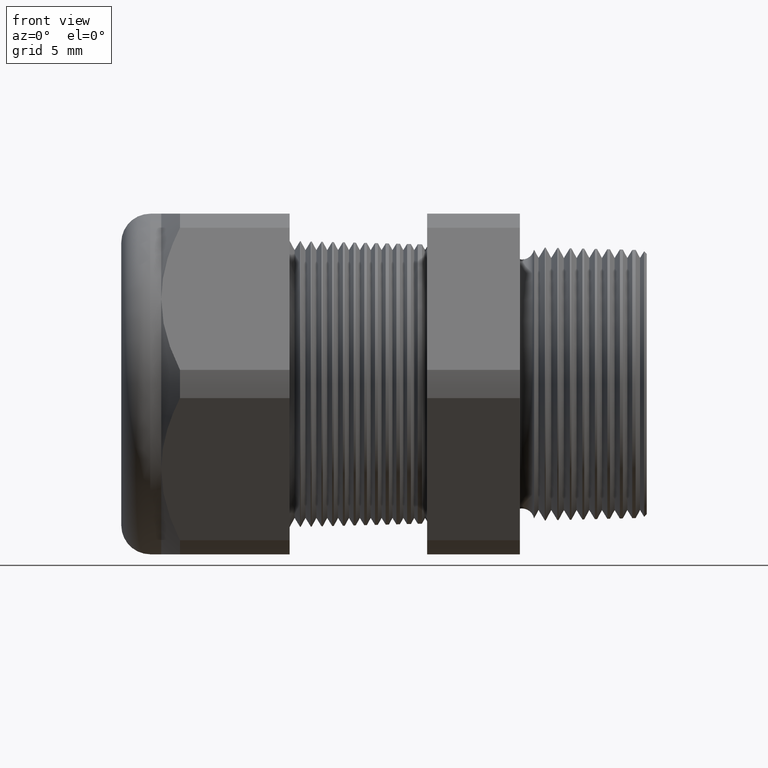
[diagram: clean part render]
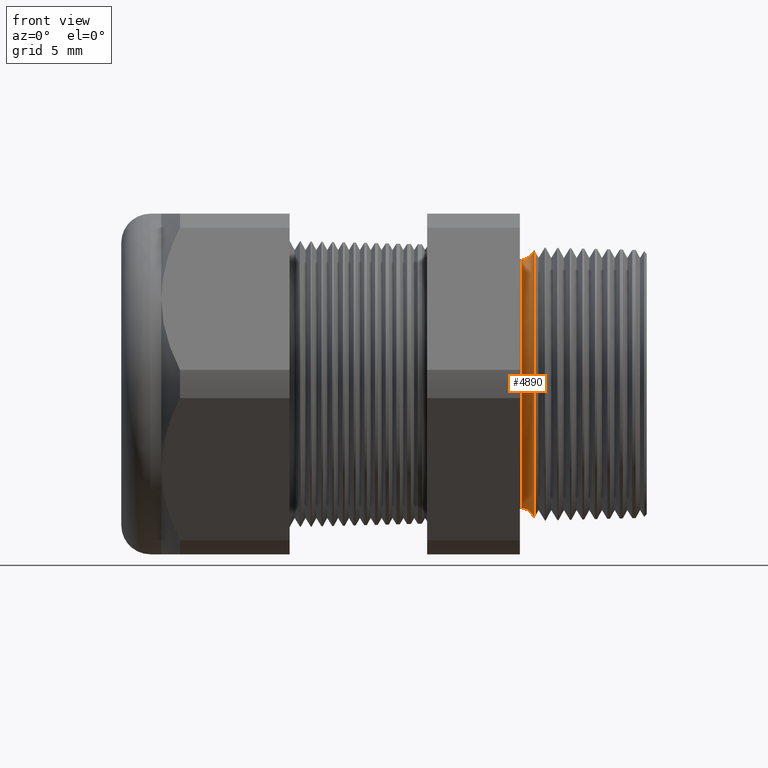
[diagram: same view with one face highlighted and labeled with its STEP entity id]
A machine part, front view. The second image highlights one B-rep face of the part: STEP entity #4890.
In plain terms, the highlighted toroidal blend (fillet) surface has major radius 9.6104 mm and minor (blend) radius 0.889 mm.
Its self-contained STEP definition (entity closure, byte-faithful):
#100 = EDGE_CURVE ( 'NONE', #101, #4891, #1248, .T. ) ;
#101 = VERTEX_POINT ( 'NONE', #1243 ) ;
#104 = EDGE_LOOP ( 'NONE', ( #4892, #4894, #106, #107 ) ) ;
#105 = EDGE_CURVE ( 'NONE', #4891, #4867, #1303, .T. ) ;
#106 = ORIENTED_EDGE ( 'NONE', *, *, #4869, .F. ) ;
#107 = ORIENTED_EDGE ( 'NONE', *, *, #109, .F. ) ;
#109 = EDGE_CURVE ( 'NONE', #101, #4863, #1299, .T. ) ;
#1242 = CARTESIAN_POINT ( 'NONE',  ( -0.3049999999999999400, 0.0000000000000000000, 0.0000000000000000000 ) ) ;
#1243 = CARTESIAN_POINT ( 'NONE',  ( -0.2708463023710462300, 0.0000000000000000000, 0.3707104400814432700 ) ) ;
#1244 = DIRECTION ( 'NONE',  ( 0.0000000000000000000, 1.224646799147352700E-016, 1.000000000000000000 ) ) ;
#1245 = DIRECTION ( 'NONE',  ( 0.0000000000000000000, 1.000000000000000000, -1.224646799147353200E-016 ) ) ;
#1246 = CARTESIAN_POINT ( 'NONE',  ( -0.3049999999999999400, 4.633580970323678400E-017, 0.3783605994438362700 ) ) ;
#1247 = AXIS2_PLACEMENT_3D ( 'NONE', #1246, #1245, #1244 ) ;
#1248 = CIRCLE ( 'NONE', #1247, 0.03499999999999996900 ) ;
#1295 = DIRECTION ( 'NONE',  ( 0.0000000000000000000, 0.0000000000000000000, 1.000000000000000000 ) ) ;
#1296 = DIRECTION ( 'NONE',  ( 1.000000000000000000, 0.0000000000000000000, 0.0000000000000000000 ) ) ;
#1297 = CARTESIAN_POINT ( 'NONE',  ( -0.2708463023710462300, 0.0000000000000000000, 0.0000000000000000000 ) ) ;
#1298 = AXIS2_PLACEMENT_3D ( 'NONE', #1297, #1296, #1295 ) ;
#1299 = CIRCLE ( 'NONE', #1298, 0.3707104400814433300 ) ;
#1300 = DIRECTION ( 'NONE',  ( 0.0000000000000000000, 0.0000000000000000000, -1.000000000000000000 ) ) ;
#1301 = DIRECTION ( 'NONE',  ( 1.000000000000000000, 0.0000000000000000000, 0.0000000000000000000 ) ) ;
#1302 = AXIS2_PLACEMENT_3D ( 'NONE', #1242, #1301, #1300 ) ;
#1303 = CIRCLE ( 'NONE', #1302, 0.3433605994438362900 ) ;
#3980 = CARTESIAN_POINT ( 'NONE',  ( -0.3049999999999999400, 0.0000000000000000000, -0.3433605994438362900 ) ) ;
#3987 = CARTESIAN_POINT ( 'NONE',  ( -0.2708463023710462300, 4.539893538562461000E-017, -0.3707104400814432700 ) ) ;
#4035 = DIRECTION ( 'NONE',  ( 0.0000000000000000000, 0.0000000000000000000, -1.000000000000000000 ) ) ;
#4036 = DIRECTION ( 'NONE',  ( 0.0000000000000000000, -1.000000000000000000, 0.0000000000000000000 ) ) ;
#4037 = CARTESIAN_POINT ( 'NONE',  ( -0.3049999999999999400, 0.0000000000000000000, -0.3783605994438362700 ) ) ;
#4038 = AXIS2_PLACEMENT_3D ( 'NONE', #4037, #4036, #4035 ) ;
#4039 = CIRCLE ( 'NONE', #4038, 0.03499999999999996900 ) ;
#4049 = CARTESIAN_POINT ( 'NONE',  ( -0.3049999999999999400, 4.204954590622104500E-017, 0.3433605994438362900 ) ) ;
#4050 = DIRECTION ( 'NONE',  ( 0.0000000000000000000, 0.0000000000000000000, -1.000000000000000000 ) ) ;
#4051 = DIRECTION ( 'NONE',  ( 1.000000000000000000, 0.0000000000000000000, 0.0000000000000000000 ) ) ;
#4052 = CARTESIAN_POINT ( 'NONE',  ( -0.3049999999999999400, 0.0000000000000000000, 0.0000000000000000000 ) ) ;
#4053 = AXIS2_PLACEMENT_3D ( 'NONE', #4052, #4051, #4050 ) ;
#4054 = TOROIDAL_SURFACE ( 'NONE', #4053, 0.3783605994438362700, 0.03499999999999994800 ) ;
#4055 = FACE_OUTER_BOUND ( 'NONE', #104, .T. ) ;
#4863 = VERTEX_POINT ( 'NONE', #3987 ) ;
#4867 = VERTEX_POINT ( 'NONE', #3980 ) ;
#4869 = EDGE_CURVE ( 'NONE', #4863, #4867, #4039, .T. ) ;
#4890 = ADVANCED_FACE ( 'NONE', ( #4055 ), #4054, .F. ) ;
#4891 = VERTEX_POINT ( 'NONE', #4049 ) ;
#4892 = ORIENTED_EDGE ( 'NONE', *, *, #100, .T. ) ;
#4894 = ORIENTED_EDGE ( 'NONE', *, *, #105, .T. ) ;